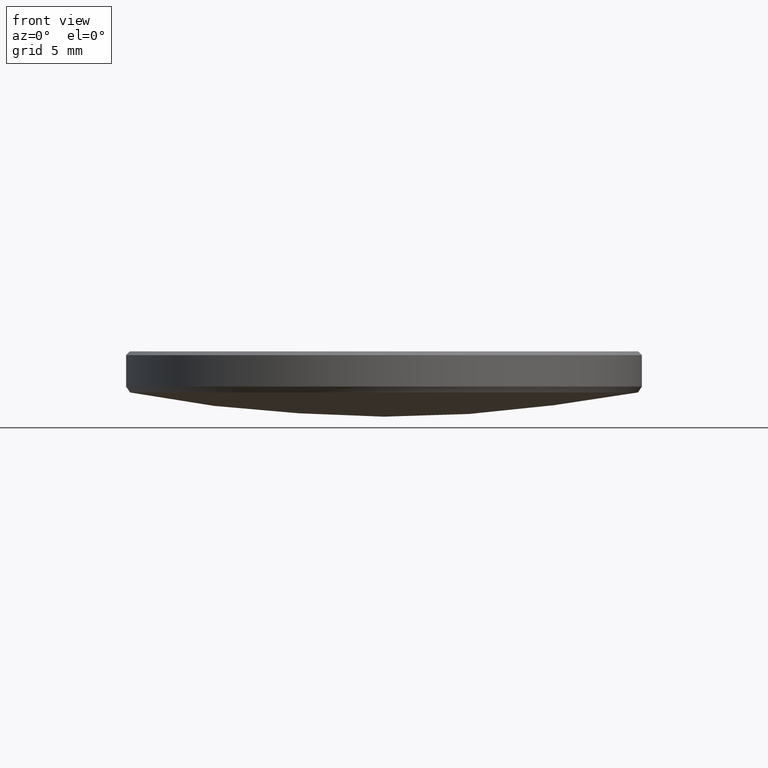
[diagram: clean part render]
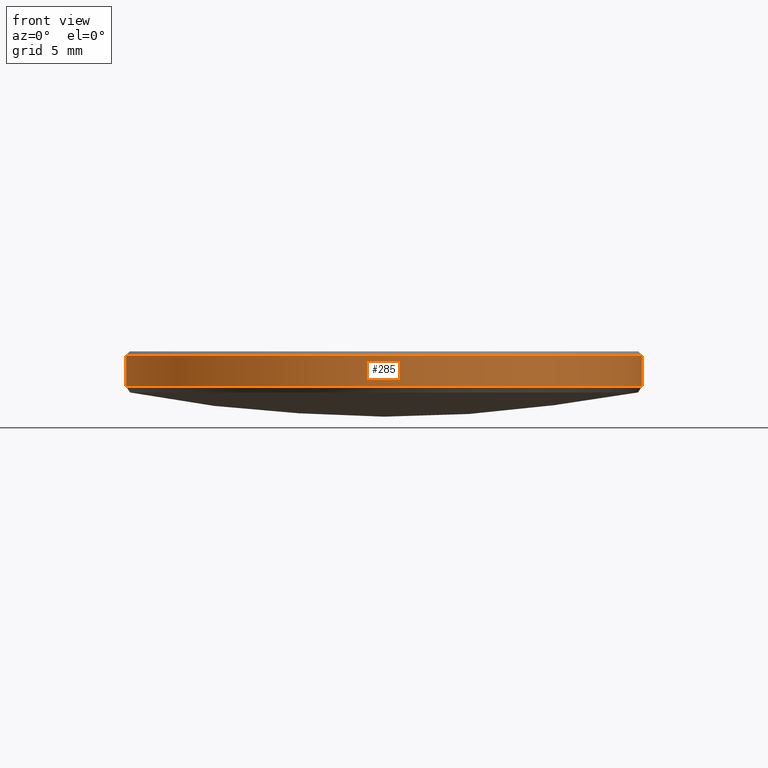
[diagram: same view with one face highlighted and labeled with its STEP entity id]
A machine part, front view. The second image highlights one B-rep face of the part: STEP entity #285.
In plain terms, the highlighted cylindrical surface (partial cylindrical patch) has radius 12.7 mm, axis along (-0, -0, -1).
Its self-contained STEP definition (entity closure, byte-faithful):
#1 = AXIS2_PLACEMENT_3D ( 'NONE', #134, #289, #82 ) ;
#7 = CIRCLE ( 'NONE', #199, 12.69999999999999929 ) ;
#10 = CARTESIAN_POINT ( 'NONE',  ( -12.69999999999999929, 0.000000000000000000, 5.800000000000027356 ) ) ;
#34 = AXIS2_PLACEMENT_3D ( 'NONE', #145, #224, #153 ) ;
#61 = LINE ( 'NONE', #245, #314 ) ;
#82 = DIRECTION ( 'NONE',  ( -1.000000000000000000, 0.000000000000000000, 0.000000000000000000 ) ) ;
#83 = EDGE_CURVE ( 'NONE', #298, #94, #183, .T. ) ;
#86 = VECTOR ( 'NONE', #238, 1000.000000000000000 ) ;
#94 = VERTEX_POINT ( 'NONE', #10 ) ;
#108 = CYLINDRICAL_SURFACE ( 'NONE', #1, 12.69999999999999929 ) ;
#118 = ORIENTED_EDGE ( 'NONE', *, *, #304, .F. ) ;
#128 = DIRECTION ( 'NONE',  ( -1.000000000000000000, 0.000000000000000000, 0.000000000000000000 ) ) ;
#134 = CARTESIAN_POINT ( 'NONE',  ( 0.000000000000000000, 0.000000000000000000, 10.00000000000000000 ) ) ;
#145 = CARTESIAN_POINT ( 'NONE',  ( 0.000000000000000000, 0.000000000000000000, 5.800000000000027356 ) ) ;
#153 = DIRECTION ( 'NONE',  ( 1.000000000000000000, 0.000000000000000000, 0.000000000000000000 ) ) ;
#157 = CARTESIAN_POINT ( 'NONE',  ( 0.000000000000000000, 0.000000000000000000, 4.253353967830220128 ) ) ;
#161 = EDGE_CURVE ( 'NONE', #293, #195, #7, .T. ) ;
#162 = CARTESIAN_POINT ( 'NONE',  ( -12.69999999999999929, 0.000000000000000000, 4.253353967830220128 ) ) ;
#183 = CIRCLE ( 'NONE', #34, 12.69999999999999929 ) ;
#195 = VERTEX_POINT ( 'NONE', #203 ) ;
#199 = AXIS2_PLACEMENT_3D ( 'NONE', #157, #257, #128 ) ;
#203 = CARTESIAN_POINT ( 'NONE',  ( 12.69999999999999929, 1.555301434917138433E-15, 4.253353967830220128 ) ) ;
#212 = CARTESIAN_POINT ( 'NONE',  ( 12.69999999999999929, 1.555301434917138433E-15, 5.800000000000027356 ) ) ;
#214 = EDGE_LOOP ( 'NONE', ( #118, #278, #318, #225 ) ) ;
#223 = DIRECTION ( 'NONE',  ( -0.000000000000000000, -0.000000000000000000, -1.000000000000000000 ) ) ;
#224 = DIRECTION ( 'NONE',  ( 0.000000000000000000, 0.000000000000000000, -1.000000000000000000 ) ) ;
#225 = ORIENTED_EDGE ( 'NONE', *, *, #161, .T. ) ;
#238 = DIRECTION ( 'NONE',  ( -0.000000000000000000, -0.000000000000000000, -1.000000000000000000 ) ) ;
#239 = FACE_OUTER_BOUND ( 'NONE', #214, .T. ) ;
#245 = CARTESIAN_POINT ( 'NONE',  ( -12.69999999999999929, 0.000000000000000000, 10.00000000000000000 ) ) ;
#257 = DIRECTION ( 'NONE',  ( -0.000000000000000000, -0.000000000000000000, 1.000000000000000000 ) ) ;
#264 = CARTESIAN_POINT ( 'NONE',  ( 12.69999999999999929, 1.555301434917138433E-15, 10.00000000000000000 ) ) ;
#267 = LINE ( 'NONE', #264, #86 ) ;
#278 = ORIENTED_EDGE ( 'NONE', *, *, #83, .T. ) ;
#285 = ADVANCED_FACE ( 'NONE', ( #239 ), #108, .T. ) ;
#289 = DIRECTION ( 'NONE',  ( -0.000000000000000000, -0.000000000000000000, -1.000000000000000000 ) ) ;
#293 = VERTEX_POINT ( 'NONE', #162 ) ;
#298 = VERTEX_POINT ( 'NONE', #212 ) ;
#304 = EDGE_CURVE ( 'NONE', #298, #195, #267, .T. ) ;
#313 = EDGE_CURVE ( 'NONE', #94, #293, #61, .T. ) ;
#314 = VECTOR ( 'NONE', #223, 1000.000000000000000 ) ;
#318 = ORIENTED_EDGE ( 'NONE', *, *, #313, .T. ) ;